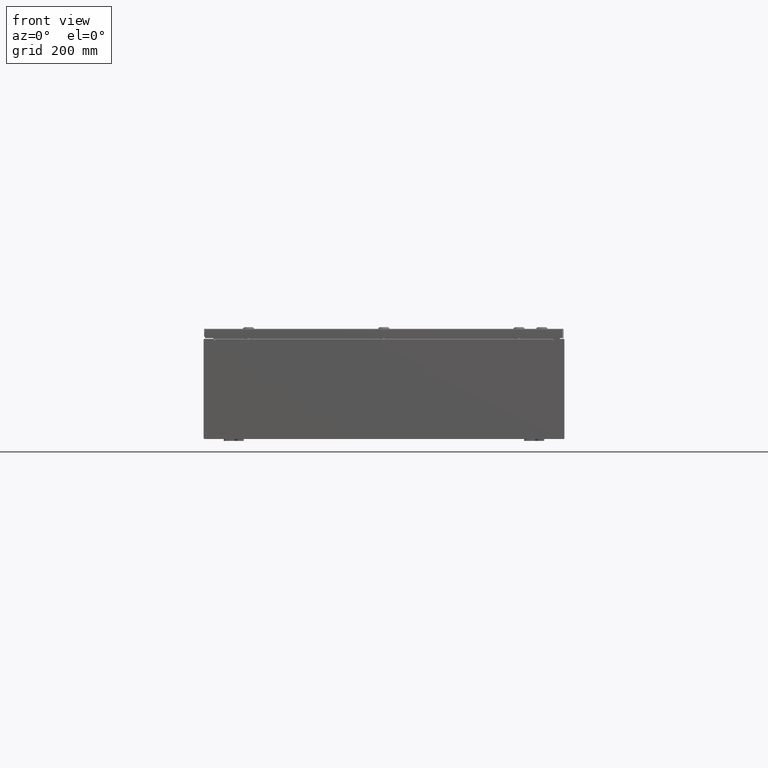
[diagram: clean part render]
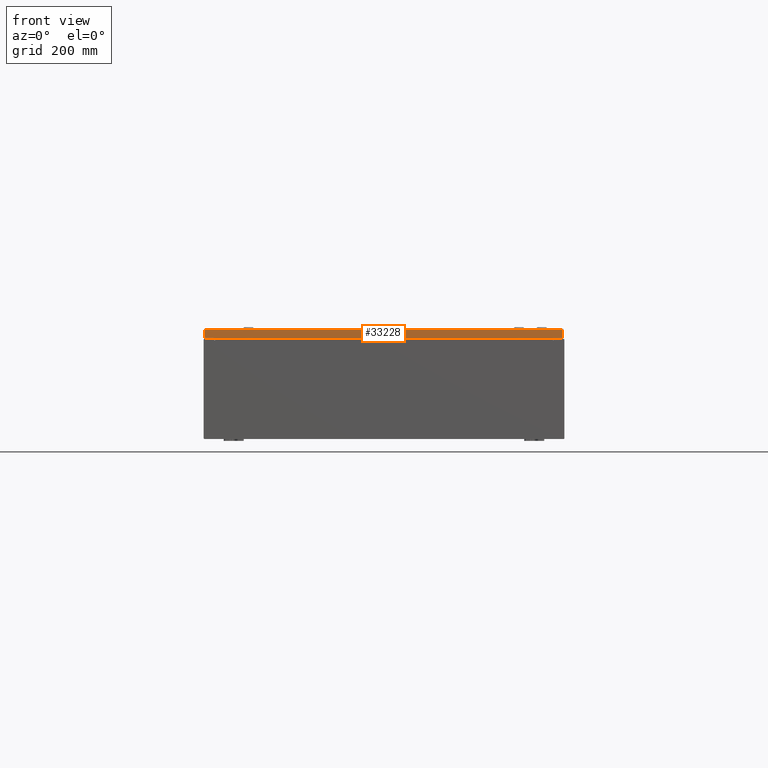
[diagram: same view with one face highlighted and labeled with its STEP entity id]
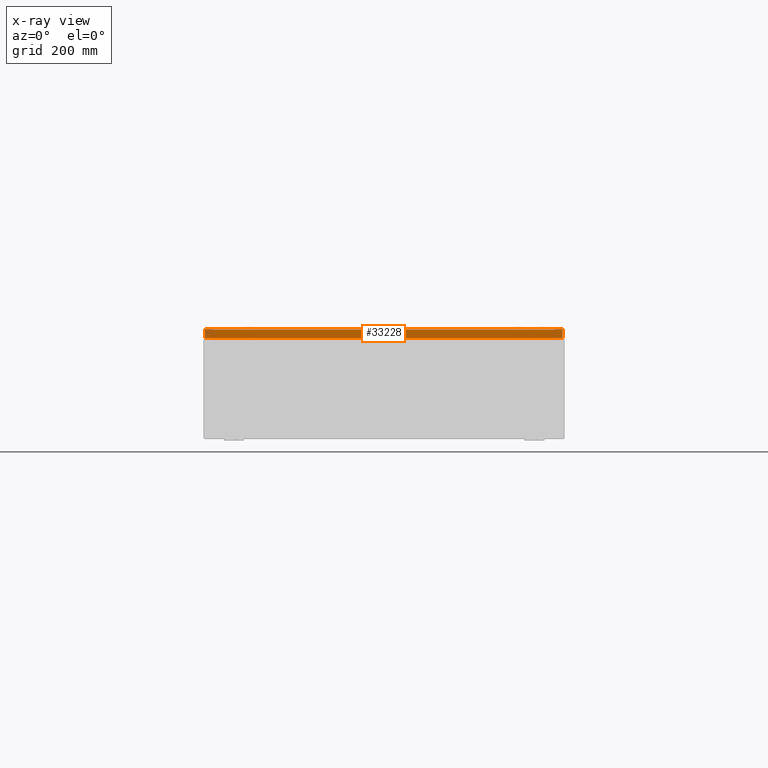
[diagram: x-ray of the same camera — body ghosted, the highlighted face saturated]
A machine part, front view. The second image highlights one B-rep face of the part: STEP entity #33228.
The next image is the same camera in x-ray: the body ghosted, the highlighted face saturated — about 0% of this face is hidden behind the body in this view.
In plain terms, the highlighted planar face has unit normal (-0, 1, -0).
Its self-contained STEP definition (entity closure, byte-faithful):
#546 = LINE ( 'NONE', #66181, #25756 ) ;
#1813 = CARTESIAN_POINT ( 'NONE',  ( 17.84865786437626800, -29.93749999999998900, -0.08769999999999550400 ) ) ;
#2142 = DIRECTION ( 'NONE',  ( -1.000000000000000000, -8.758115402030108600E-047, 1.218385167906012900E-016 ) ) ;
#4652 = FACE_OUTER_BOUND ( 'NONE', #60414, .T. ) ;
#5254 = CARTESIAN_POINT ( 'NONE',  ( 17.93750000000000000, -29.93749999999998900, -0.08769999999999550400 ) ) ;
#7809 = VECTOR ( 'NONE', #11559, 39.37007874015748100 ) ;
#8469 = LINE ( 'NONE', #24306, #63635 ) ;
#9103 = ORIENTED_EDGE ( 'NONE', *, *, #31026, .F. ) ;
#11559 = DIRECTION ( 'NONE',  ( -0.0000000000000000000, -5.064839849203732200E-015, -1.000000000000000000 ) ) ;
#24306 = CARTESIAN_POINT ( 'NONE',  ( -17.84865786437626800, -29.93749999999998900, 1.518894566415482600E-013 ) ) ;
#25756 = VECTOR ( 'NONE', #2142, 39.37007874015748100 ) ;
#28685 = CARTESIAN_POINT ( 'NONE',  ( -17.84865786437626800, -29.93749999999998900, -0.08769999999999550400 ) ) ;
#30207 = CARTESIAN_POINT ( 'NONE',  ( 1.847420896432940200E-029, -29.93749999999998900, 1.518894566415482600E-013 ) ) ;
#30790 = VERTEX_POINT ( 'NONE', #64832 ) ;
#31026 = EDGE_CURVE ( 'NONE', #30790, #57702, #546, .T. ) ;
#33228 = ADVANCED_FACE ( 'NONE', ( #4652 ), #62157, .F. ) ;
#33570 = CARTESIAN_POINT ( 'NONE',  ( -17.84865786437626800, -29.93749999999999300, -0.9376999999999954300 ) ) ;
#33781 = VECTOR ( 'NONE', #42763, 39.37007874015748100 ) ;
#34316 = ORIENTED_EDGE ( 'NONE', *, *, #48737, .T. ) ;
#35649 = DIRECTION ( 'NONE',  ( 0.0000000000000000000, 5.064839849203732200E-015, 1.000000000000000000 ) ) ;
#35868 = EDGE_CURVE ( 'NONE', #64790, #30790, #48853, .T. ) ;
#36389 = EDGE_CURVE ( 'NONE', #65577, #64790, #49659, .T. ) ;
#42763 = DIRECTION ( 'NONE',  ( 1.000000000000000000, 6.170925750089155900E-031, -3.189293793798686700E-045 ) ) ;
#48737 = EDGE_CURVE ( 'NONE', #65577, #57702, #8469, .T. ) ;
#48853 = LINE ( 'NONE', #49015, #7809 ) ;
#49015 = CARTESIAN_POINT ( 'NONE',  ( 17.84865786437626800, -29.93749999999998900, -0.07469999999999962800 ) ) ;
#49524 = ORIENTED_EDGE ( 'NONE', *, *, #35868, .F. ) ;
#49659 = LINE ( 'NONE', #5254, #33781 ) ;
#51183 = DIRECTION ( 'NONE',  ( 0.0000000000000000000, -5.064839849203732200E-015, -1.000000000000000000 ) ) ;
#57702 = VERTEX_POINT ( 'NONE', #33570 ) ;
#60414 = EDGE_LOOP ( 'NONE', ( #66442, #34316, #9103, #49524 ) ) ;
#62157 = PLANE ( 'NONE',  #63149 ) ;
#63149 = AXIS2_PLACEMENT_3D ( 'NONE', #30207, #67467, #35649 ) ;
#63635 = VECTOR ( 'NONE', #51183, 39.37007874015748100 ) ;
#64790 = VERTEX_POINT ( 'NONE', #1813 ) ;
#64832 = CARTESIAN_POINT ( 'NONE',  ( 17.84865786437626800, -29.93749999999999300, -0.9376999999999997600 ) ) ;
#65577 = VERTEX_POINT ( 'NONE', #28685 ) ;
#66181 = CARTESIAN_POINT ( 'NONE',  ( 17.93750000000000000, -29.93749999999999300, -0.9376999999999997600 ) ) ;
#66442 = ORIENTED_EDGE ( 'NONE', *, *, #36389, .F. ) ;
#67467 = DIRECTION ( 'NONE',  ( -6.170925750089155000E-031, 1.000000000000000000, -5.064839849203732200E-015 ) ) ;